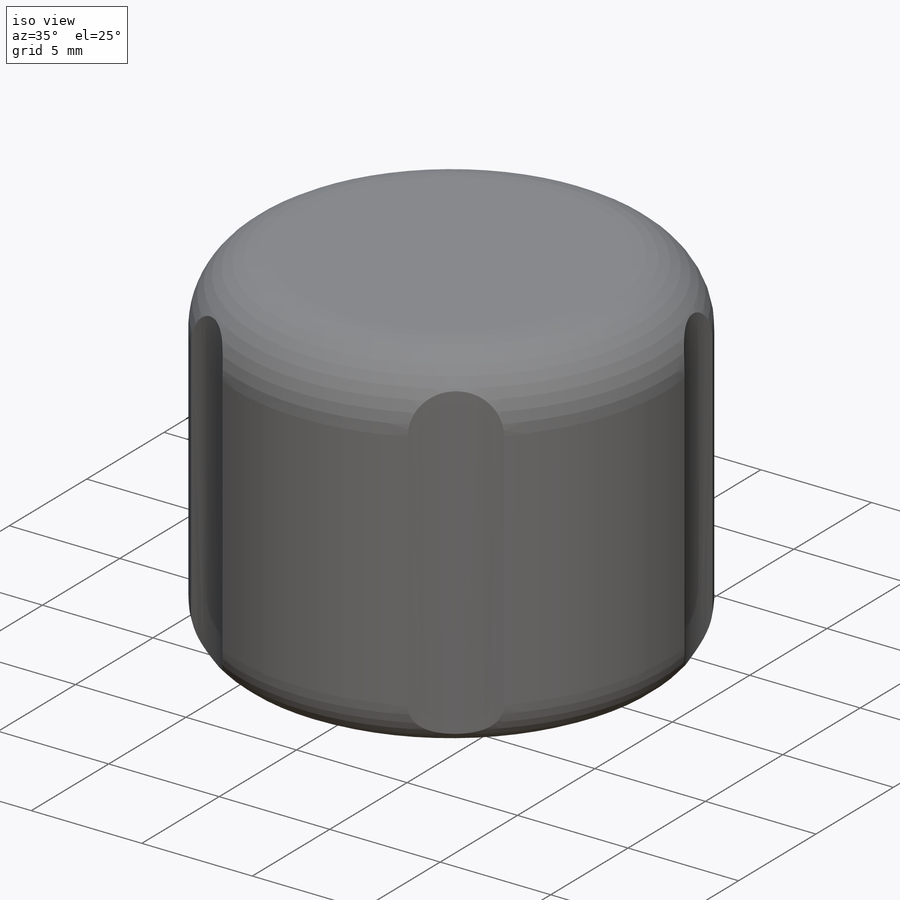
[diagram: iso view]
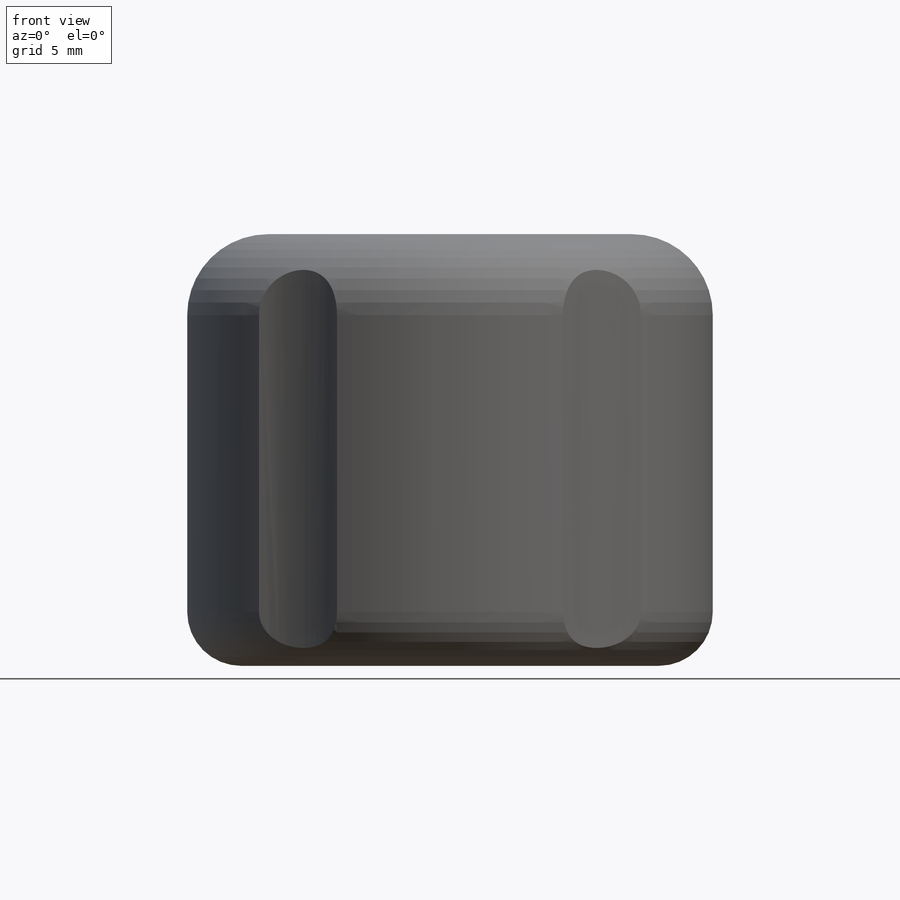
[diagram: front view]
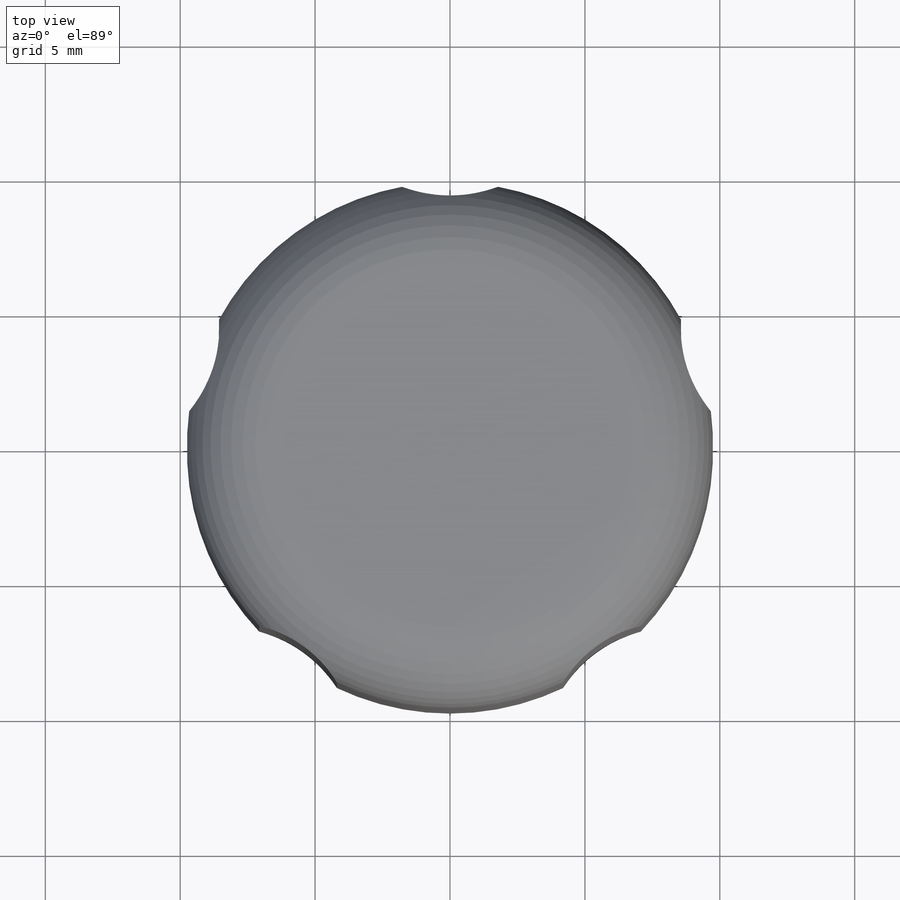
[diagram: top view]
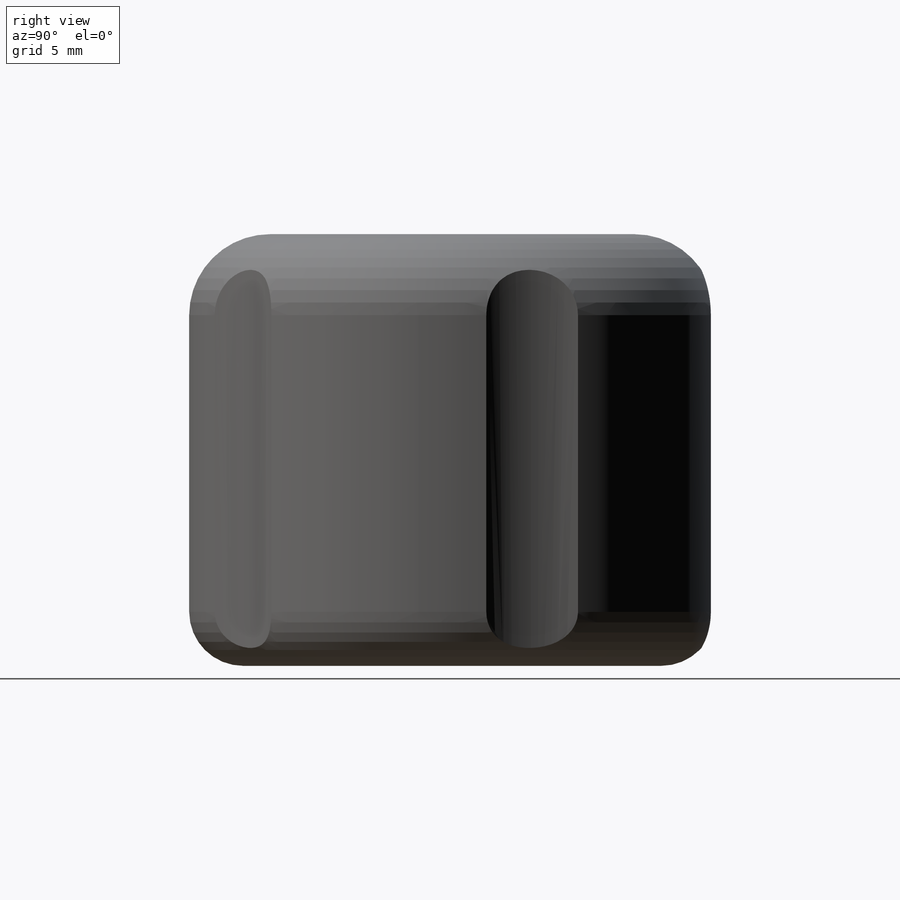
[diagram: right view]
SOLIDWORKS PART (.sldprt)
format: sldprt  version: not decoded by parser v0  size: 588,288 bytes
history: native  units: mm
features: sketch x9, cut_extrude x5, extrude x2, pattern_circular x2, fillet x2, material x1, helix x1, sweep x1, plane x1 (+11 scaffold rows collapsed)
feature tree (35):
  scaffold x11  (default folders/planes/origin — collapsed)
  material  "Material <not specified>"
  sketch  "Sketch1"  dims[D1=2.0mm]
  extrude  "Boss-Extrude1"  Depth=1mm
  sketch  "Sketch2"  dims[D1=6.0mm]
  cut_extrude  "Cut-Extrude1"  Depth=1mm
  sketch  "Sketch3"
  sketch  "Sketch4"
  helix  "Helix/Spiral1"  Pitch=17mm
  sweep  "Sweep1"
  pattern_circular  "CirPattern2"  Count=5 Angle=360deg
  sketch  "Sketch10"
  cut_extrude  "Cut-Extrude3"  Depth=5mm
  sketch  "Sketch5"  dims[D1=9.0mm]
  cut_extrude  "Cut-Extrude2"  Depth=4.2mm
  sketch  "Sketch6"  dims[D1=2.0mm D2=1.7mm]
  extrude  "Boss-Extrude2"  [1 undecoded]
  plane  "Plane1"
  fillet  "Fillet1"  Radius=3mm
  fillet  "Fillet2"  Radius=2mm
  sketch  "Sketch11"  dims[D2=9.525mm D1=14.0mm]
  cut_extrude  "Cut-Extrude4"  [1 undecoded]
  pattern_circular  "CirPattern3"  Count=5 Angle=360deg
  sketch  "Sketch12"  dims[D1=0.1mm D2=0.1mm]
  cut_extrude  "Cut-Extrude6"  Depth=5mm
decode coverage: 16 of 22 modeling features carry decoded parameters
note: 2 parameter values undecoded
note: suppression state not decoded; provenance and decode notes live in map.json
